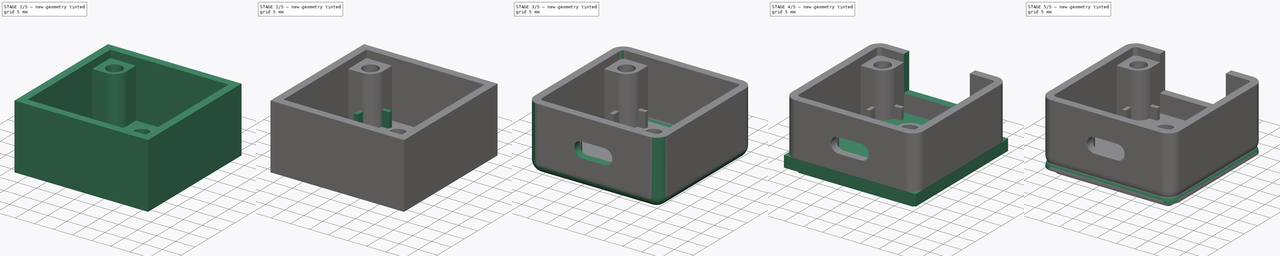
[diagram: build sequence overview — one tinted view per stage of 5, left to right]
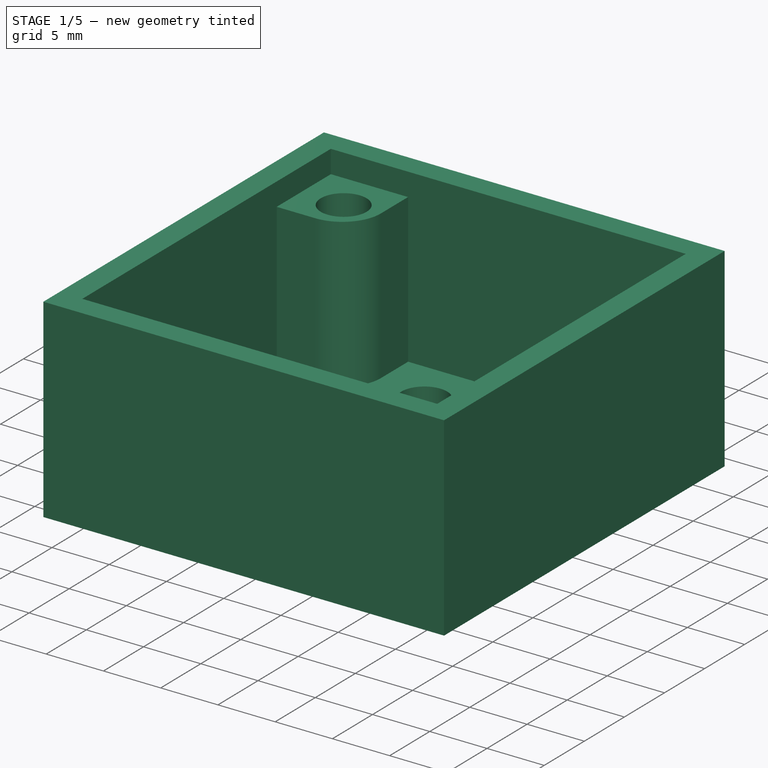
[diagram: stage 1 of 5 — iso view after this stage's code; geometry added in this stage tinted green]
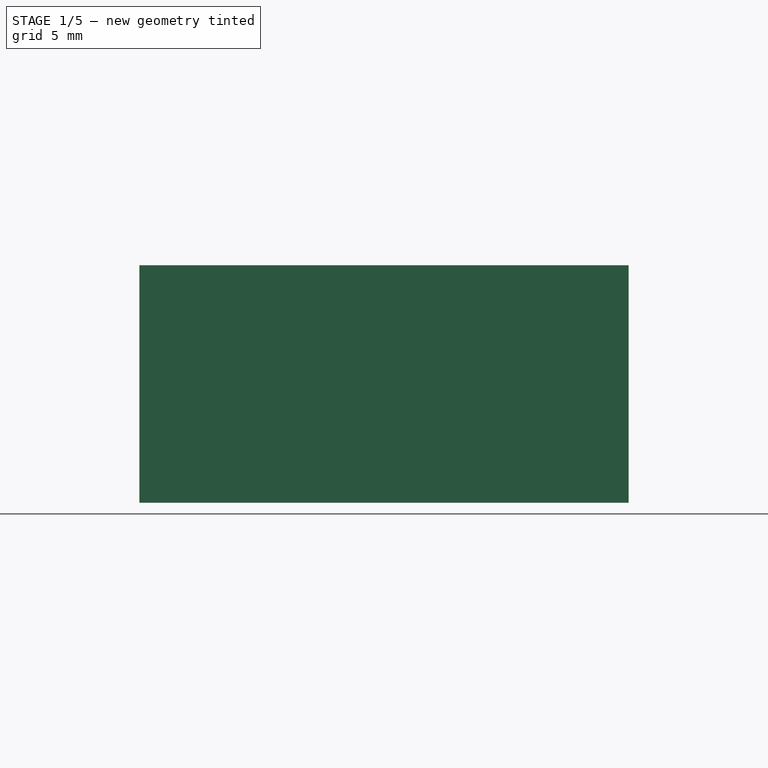
[diagram: stage 1 of 5 — front view after this stage's code; geometry added in this stage tinted green]
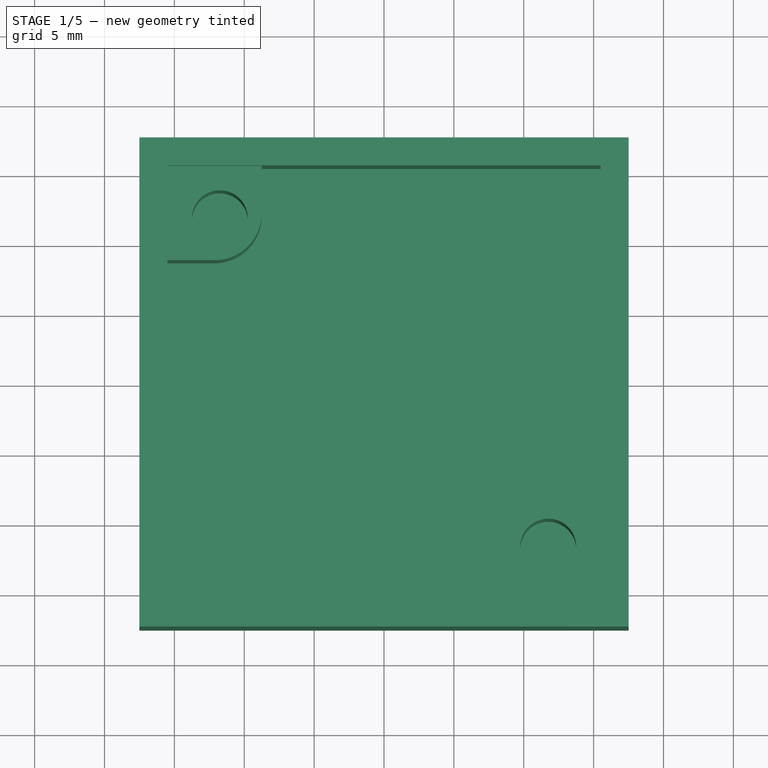
[diagram: stage 1 of 5 — top view after this stage's code; geometry added in this stage tinted green]
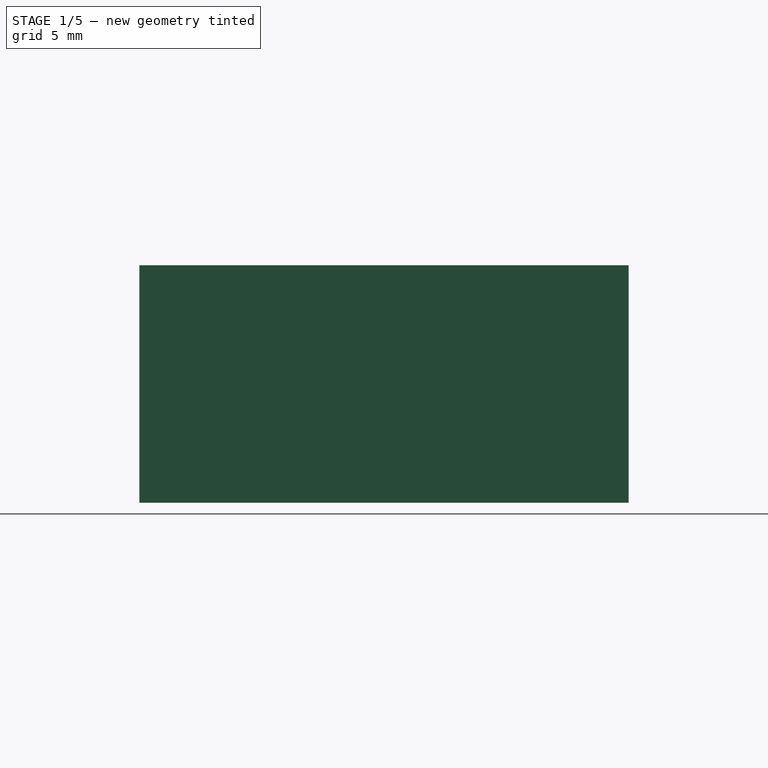
[diagram: stage 1 of 5 — right view after this stage's code; geometry added in this stage tinted green]
FCSTD DOCUMENT  (FreeCAD 0.19R24276 (Git))
Label: USB-C_breakouts
License: All rights reserved
LicenseURL: http://en.wikipedia.org/wiki/All_rights_reserved
objects: Sketcher::SketchObject×20, PartDesign::Pad×13, PartDesign::Pocket×7, PartDesign::Fillet×4, PartDesign::Body×2, Spreadsheet::Sheet×1, PartDesign::Chamfer×1
note: 72 computed .brp shape members not serialized (recipe doc carries the construction recipe); baked Part::Feature solids carry a one-line shape summary decoded from their .brp

FEATURE [Sketcher::SketchObject] Sketch
  FullyConstrained = true
  MapMode = 5
  Support = -> [XY_Plane]
  expr: Constraints[10] = <<dimensions>>.box_body_size
  sketch-geometry (4):
    g0: LineSegment StartX=-17.5 StartY=-17.5 StartZ=0 EndX=17.5 EndY=-17.5 EndZ=0
    g1: LineSegment StartX=17.5 StartY=-17.5 StartZ=0 EndX=17.5 EndY=17.5 EndZ=0
    g2: LineSegment StartX=17.5 StartY=17.5 StartZ=0 EndX=-17.5 EndY=17.5 EndZ=0
    g3: LineSegment StartX=-17.5 StartY=17.5 StartZ=0 EndX=-17.5 EndY=-17.5 EndZ=0
  constraints (11):
    c: Coincident(g0,g1)
    c: Coincident(g1,g2)
    c: Coincident(g2,g3)
    c: Coincident(g3,g0)
    c: Horizontal(g0)
    c: Horizontal(g2)
    c: Vertical(g1)
    c: Vertical(g3)
    c: Equal(g2,g3)
    c: Symmetric(g2,g0,g-1)
    c: Distance(g2) = 35
FEATURE [PartDesign::Pad] Pad
  Direction = (1,1,1)
  Length = 17
  Length2 = 100
  Profile = -> Sketch
  Type = 0
  expr: Length = <<dimensions>>.box_body_height
FEATURE [Sketcher::SketchObject] Sketch026
  FullyConstrained = true
  MapMode = 5
  Placement = pos=(0,0,17) rot=(0,0,1;0rad)
  Support = -> [Pad]
  expr: Constraints[10] = <<dimensions>>.box_body_size - <<dimensions>>.wall_thickness * 2
  sketch-geometry (4):
    g0: LineSegment StartX=-15.5 StartY=15.5 StartZ=0 EndX=15.5 EndY=15.5 EndZ=0
    g1: LineSegment StartX=15.5 StartY=15.5 StartZ=0 EndX=15.5 EndY=-15.5 EndZ=0
    g2: LineSegment StartX=15.5 StartY=-15.5 StartZ=0 EndX=-15.5 EndY=-15.5 EndZ=0
    g3: LineSegment StartX=-15.5 StartY=-15.5 StartZ=0 EndX=-15.5 EndY=15.5 EndZ=0
  constraints (11):
    c: Coincident(g0,g1)
    c: Coincident(g1,g2)
    c: Coincident(g2,g3)
    c: Coincident(g3,g0)
    c: Horizontal(g0)
    c: Horizontal(g2)
    c: Vertical(g1)
    c: Vertical(g3)
    c: Symmetric(g0,g1,g-1)
    c: Equal(g0,g1)
    c: Distance(g0) = 31
FEATURE [PartDesign::Pocket] Pocket
  BaseFeature = -> Pad
  Length = 15
  Length2 = 100
  Profile = -> Sketch026
  Type = 0
  expr: Length = <<dimensions>>.box_body_height - <<dimensions>>.wall_thickness
FEATURE [Sketcher::SketchObject] Sketch027
  ExternalGeometry = -> [Pocket]
  FullyConstrained = true
  MapMode = 5
  Placement = pos=(0,0,2) rot=(0,0,1;0rad)
  Support = -> [Pocket]
  expr: Constraints[9] = <<dimensions>>.post_cover_thickness
  sketch-geometry (7):
    g0: LineSegment StartX=-15.5 StartY=15.5 StartZ=0 EndX=-8.75 EndY=15.5 EndZ=0
    g1: LineSegment StartX=-8.75 StartY=15.5 StartZ=0 EndX=-8.75 EndY=8.75 EndZ=0
    g2: LineSegment StartX=-8.75 StartY=8.75 StartZ=0 EndX=-15.5 EndY=8.75 EndZ=0
    g3: LineSegment StartX=-15.5 StartY=8.75 StartZ=0 EndX=-15.5 EndY=15.5 EndZ=0
    g4: ArcOfCircle CenterX=-12.125 CenterY=12.125 CenterZ=0 NormalX=0 NormalY=0 NormalZ=1 AngleXU=0 Radius=3.375 StartAngle=4.71239 EndAngle=6.28319
    g5: LineSegment StartX=-12.125 StartY=8.75 StartZ=0 EndX=-15.5 EndY=8.75 EndZ=0
    g6: LineSegment StartX=-8.75 StartY=12.125 StartZ=0 EndX=-8.75 EndY=15.5 EndZ=0
  constraints (17):
    c: Coincident(g0,g1)
    c: Coincident(g1,g2)
    c: Coincident(g2,g3)
    c: Coincident(g3,g0)
    c: Horizontal(g0)
    c: Horizontal(g2)
    c: Vertical(g1)
    c: Vertical(g3)
    c: Coincident(g0,g-3)
    c: Distance(g2) = 6.75
    c: Symmetric(g3,g0,g4)
    c: Symmetric(g3,g1,g4)
    c: Symmetric(g0,g1,g4)
    c: Coincident(g5,g4)
    c: Coincident(g5,g3)
    c: Coincident(g6,g4)
    c: Coincident(g6,g0)
FEATURE [PartDesign::Pad] Pad016
  BaseFeature = -> Pocket
  Direction = (1,1,1)
  Length = 13
  Length2 = 100
  Profile = -> Sketch027
  Type = 0
  expr: Length = <<dimensions>>.box_body_height - <<dimensions>>.wall_thickness - 2
FEATURE [Sketcher::SketchObject] Sketch028
  ExternalGeometry = -> [Pad016]
  FullyConstrained = true
  MapMode = 5
  Placement = pos=(0,0,2) rot=(0,0,1;0rad)
  Support = -> [Pad016]
  expr: Constraints[9] = <<dimensions>>.post_cover_thickness
  sketch-geometry (7):
    g0: LineSegment StartX=8.75 StartY=-8.75 StartZ=0 EndX=15.5 EndY=-8.75 EndZ=0
    g1: LineSegment StartX=15.5 StartY=-8.75 StartZ=0 EndX=15.5 EndY=-15.5 EndZ=0
    g2: LineSegment StartX=15.5 StartY=-15.5 StartZ=0 EndX=8.75 EndY=-15.5 EndZ=0
    g3: LineSegment StartX=8.75 StartY=-15.5 StartZ=0 EndX=8.75 EndY=-8.75 EndZ=0
    g4: ArcOfCircle CenterX=12.125 CenterY=-12.125 CenterZ=0 NormalX=0 NormalY=0 NormalZ=1 AngleXU=0 Radius=3.375 StartAngle=1.5708 EndAngle=3.14159
    g5: LineSegment StartX=8.75 StartY=-12.125 StartZ=0 EndX=8.75 EndY=-15.5 EndZ=0
    g6: LineSegment StartX=12.125 StartY=-8.75 StartZ=0 EndX=15.5 EndY=-8.75 EndZ=0
  constraints (17):
    c: Coincident(g0,g1)
    c: Coincident(g1,g2)
    c: Coincident(g2,g3)
    c: Coincident(g3,g0)
    c: Horizontal(g0)
    c: Horizontal(g2)
    c: Vertical(g1)
    c: Vertical(g3)
    c: Coincident(g1,g-3)
    c: Distance(g0) = 6.75
    c: Symmetric(g1,g0,g4)
    c: Symmetric(g0,g2,g4)
    c: Symmetric(g2,g1,g4)
    c: Coincident(g5,g4)
    c: Coincident(g5,g2)
    c: Coincident(g6,g4)
    c: Coincident(g6,g1)
FEATURE [PartDesign::Pad] Pad017
  BaseFeature = -> Pad016
  Direction = (1,1,1)
  Length = 13
  Length2 = 100
  Profile = -> Sketch028
  Type = 0
  expr: Length = <<dimensions>>.box_body_height - <<dimensions>>.wall_thickness - 2
FEATURE [Sketcher::SketchObject] Sketch029
  FullyConstrained = true
  MapMode = 5
  Placement = pos=(0,0,15) rot=(0,0,1;0rad)
  Support = -> [Pad017]
  expr: Constraints[14] = <<dimensions>>.post_cover_hole_size
  sketch-geometry (6):
    g0: LineSegment StartX=-11.75 StartY=11.75 StartZ=0 EndX=11.75 EndY=11.75 EndZ=0
    g1: LineSegment StartX=11.75 StartY=11.75 StartZ=0 EndX=11.75 EndY=-11.75 EndZ=0
    g2: LineSegment StartX=11.75 StartY=-11.75 StartZ=0 EndX=-11.75 EndY=-11.75 EndZ=0
    g3: LineSegment StartX=-11.75 StartY=-11.75 StartZ=0 EndX=-11.75 EndY=11.75 EndZ=0
    g4: Circle CenterX=-11.75 CenterY=11.75 CenterZ=0 NormalX=0 NormalY=0 NormalZ=1 AngleXU=0 Radius=2
    g5: Circle CenterX=11.75 CenterY=-11.75 CenterZ=0 NormalX=0 NormalY=0 NormalZ=1 AngleXU=0 Radius=2
  constraints (15):
    c: Coincident(g0,g1)
    c: Coincident(g1,g2)
    c: Coincident(g2,g3)
    c: Coincident(g3,g0)
    c: Horizontal(g0)
    c: Horizontal(g2)
    c: Vertical(g1)
    c: Vertical(g3)
    c: Coincident(g4,g0)
    c: Coincident(g5,g1)
    c: Equal(g5,g4)
    c: Equal(g0,g1)
    c: Distance(g0) = 23.5
    c: Symmetric(g0,g2,g-1)
    c: Diameter(g4) = 4
FEATURE [PartDesign::Pocket] Pocket009
  BaseFeature = -> Pad017
  Length = 13
  Length2 = 100
  Profile = -> Sketch029
  Type = 0
  expr: Length = <<dimensions>>.box_body_height - <<dimensions>>.wall_thickness - 2
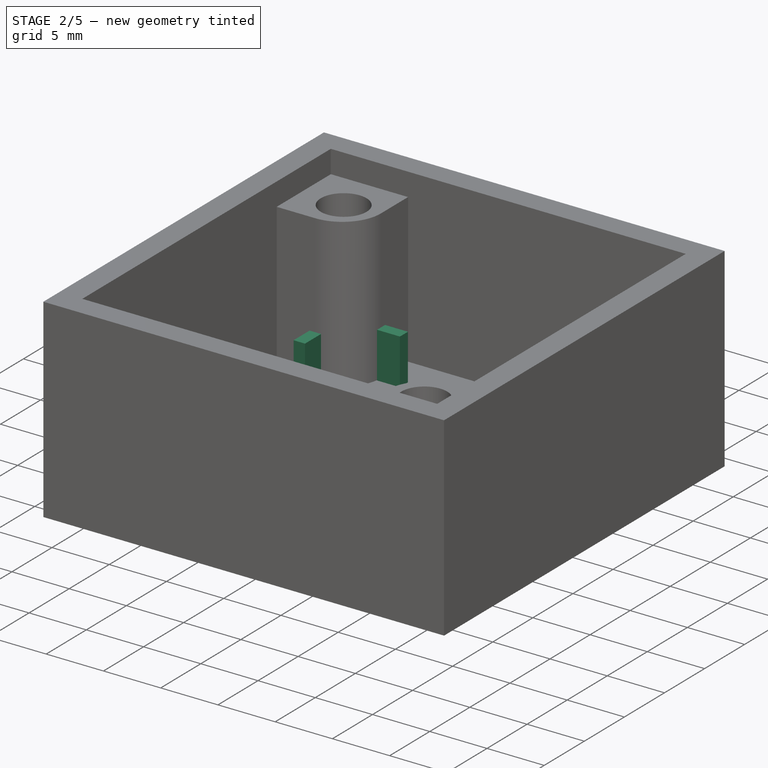
[diagram: stage 2 of 5 — iso view after this stage's code; geometry added in this stage tinted green]
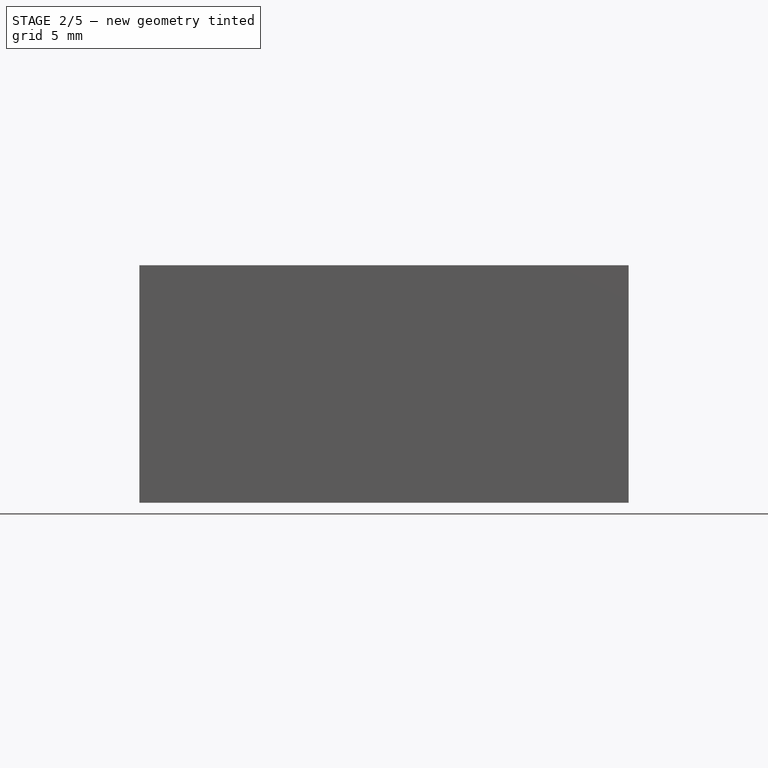
[diagram: stage 2 of 5 — front view after this stage's code; geometry added in this stage tinted green]
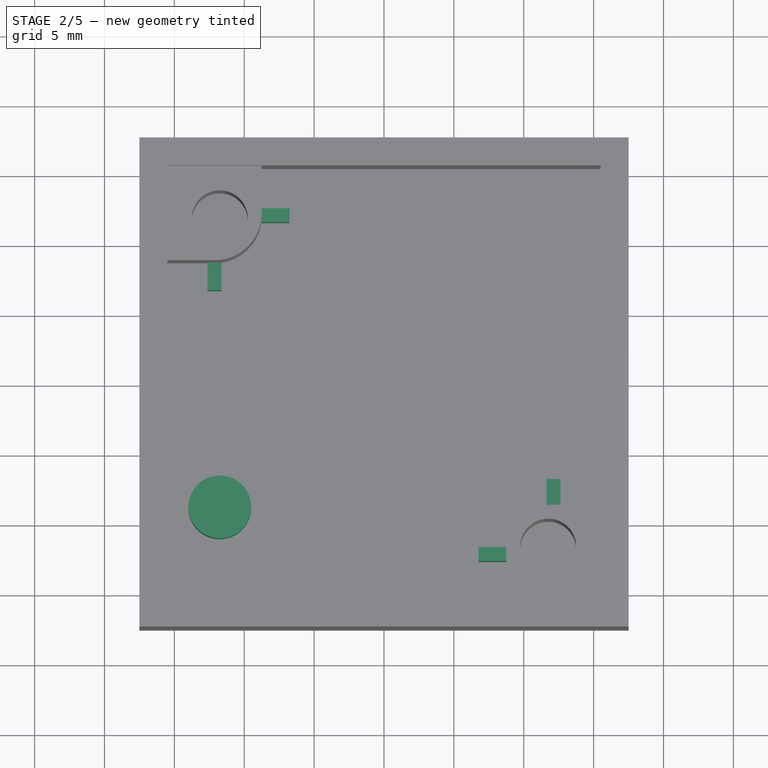
[diagram: stage 2 of 5 — top view after this stage's code; geometry added in this stage tinted green]
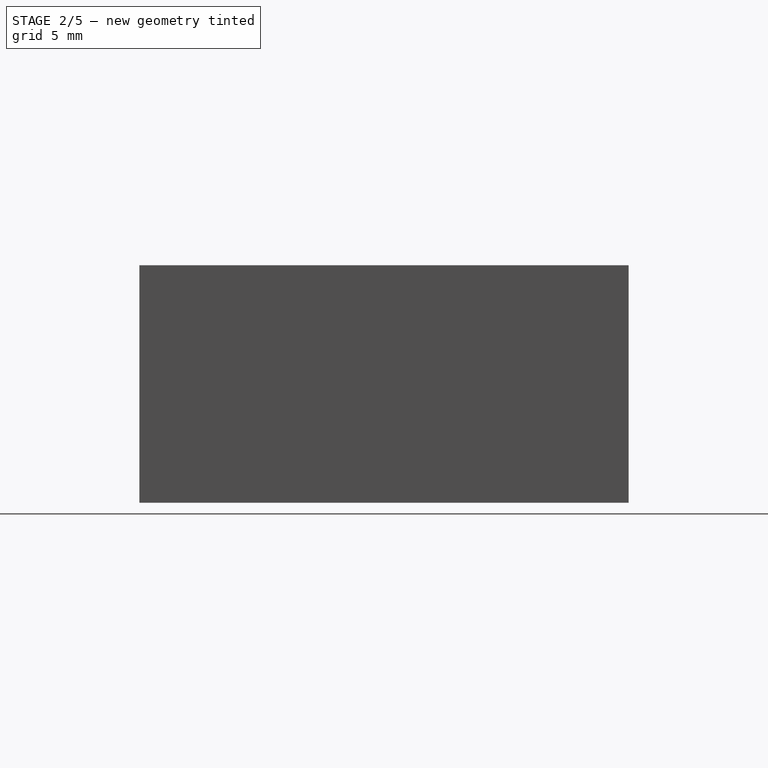
[diagram: stage 2 of 5 — right view after this stage's code; geometry added in this stage tinted green]
FEATURE [Sketcher::SketchObject] Sketch030
  ExternalGeometry = -> [Pocket009]
  FullyConstrained = true
  MapMode = 5
  Placement = pos=(0,0,2) rot=(0,0,1;0rad)
  Support = -> [Pocket009]
  sketch-geometry (4):
    g0: LineSegment StartX=-12.625 StartY=8.75 StartZ=0 EndX=-11.625 EndY=8.75 EndZ=0
    g1: LineSegment StartX=-11.625 StartY=8.75 StartZ=0 EndX=-11.625 EndY=6.75 EndZ=0
    g2: LineSegment StartX=-11.625 StartY=6.75 StartZ=0 EndX=-12.625 EndY=6.75 EndZ=0
    g3: LineSegment StartX=-12.625 StartY=6.75 StartZ=0 EndX=-12.625 EndY=8.75 EndZ=0
  constraints (11):
    c: Coincident(g0,g1)
    c: Coincident(g1,g2)
    c: Coincident(g2,g3)
    c: Coincident(g3,g0)
    c: Horizontal(g0)
    c: Horizontal(g2)
    c: Vertical(g1)
    c: Vertical(g3)
    c: Symmetric(g0,g0,g-3)
    c: Distance(g1) = 2
    c: Distance(g2) = 1
FEATURE [PartDesign::Pad] Pad018
  BaseFeature = -> Pocket009
  Direction = (1,1,1)
  Length = 4
  Length2 = 100
  Profile = -> Sketch030
  Type = 0
  expr: Length = <<dimensions>>.PCB_height
FEATURE [Sketcher::SketchObject] Sketch031
  ExternalGeometry = -> [Pad018]
  FullyConstrained = true
  MapMode = 5
  Placement = pos=(0,0,2) rot=(0,0,1;0rad)
  Support = -> [Pad018]
  sketch-geometry (4):
    g0: LineSegment StartX=-8.75 StartY=12.625 StartZ=0 EndX=-6.75 EndY=12.625 EndZ=0
    g1: LineSegment StartX=-6.75 StartY=12.625 StartZ=0 EndX=-6.75 EndY=11.625 EndZ=0
    g2: LineSegment StartX=-6.75 StartY=11.625 StartZ=0 EndX=-8.75 EndY=11.625 EndZ=0
    g3: LineSegment StartX=-8.75 StartY=11.625 StartZ=0 EndX=-8.75 EndY=12.625 EndZ=0
  constraints (11):
    c: Coincident(g0,g1)
    c: Coincident(g1,g2)
    c: Coincident(g2,g3)
    c: Coincident(g3,g0)
    c: Horizontal(g0)
    c: Horizontal(g2)
    c: Vertical(g1)
    c: Vertical(g3)
    c: Distance(g0) = 2
    c: Distance(g1) = 1
    c: Symmetric(g0,g2,g-3)
FEATURE [PartDesign::Pad] Pad019
  BaseFeature = -> Pad018
  Direction = (1,1,1)
  Length = 4
  Length2 = 100
  Profile = -> Sketch031
  Type = 0
  expr: Length = <<dimensions>>.PCB_height
FEATURE [Sketcher::SketchObject] Sketch032
  ExternalGeometry = -> [Pad019]
  FullyConstrained = true
  MapMode = 5
  Placement = pos=(0,0,2) rot=(0,0,1;0rad)
  Support = -> [Pad019]
  sketch-geometry (4):
    g0: LineSegment StartX=6.75 StartY=-11.625 StartZ=0 EndX=8.75 EndY=-11.625 EndZ=0
    g1: LineSegment StartX=8.75 StartY=-11.625 StartZ=0 EndX=8.75 EndY=-12.625 EndZ=0
    g2: LineSegment StartX=8.75 StartY=-12.625 StartZ=0 EndX=6.75 EndY=-12.625 EndZ=0
    g3: LineSegment StartX=6.75 StartY=-12.625 StartZ=0 EndX=6.75 EndY=-11.625 EndZ=0
  constraints (11):
    c: Coincident(g0,g1)
    c: Coincident(g1,g2)
    c: Coincident(g2,g3)
    c: Coincident(g3,g0)
    c: Horizontal(g0)
    c: Horizontal(g2)
    c: Vertical(g1)
    c: Vertical(g3)
    c: Distance(g0) = 2
    c: Distance(g3) = 1
    c: Symmetric(g0,g1,g-3)
FEATURE [PartDesign::Pad] Pad020
  BaseFeature = -> Pad019
  Direction = (1,1,1)
  Length = 4
  Length2 = 100
  Profile = -> Sketch032
  Type = 0
  expr: Length = <<dimensions>>.PCB_height
FEATURE [Sketcher::SketchObject] Sketch033
  ExternalGeometry = -> [Pad020]
  FullyConstrained = true
  MapMode = 5
  Placement = pos=(0,0,2) rot=(0,0,1;0rad)
  Support = -> [Pad020]
  sketch-geometry (4):
    g0: LineSegment StartX=11.625 StartY=-6.75 StartZ=0 EndX=12.625 EndY=-6.75 EndZ=0
    g1: LineSegment StartX=12.625 StartY=-6.75 StartZ=0 EndX=12.625 EndY=-8.75 EndZ=0
    g2: LineSegment StartX=12.625 StartY=-8.75 StartZ=0 EndX=11.625 EndY=-8.75 EndZ=0
    g3: LineSegment StartX=11.625 StartY=-8.75 StartZ=0 EndX=11.625 EndY=-6.75 EndZ=0
  constraints (11):
    c: Coincident(g0,g1)
    c: Coincident(g1,g2)
    c: Coincident(g2,g3)
    c: Coincident(g3,g0)
    c: Horizontal(g0)
    c: Horizontal(g2)
    c: Vertical(g1)
    c: Vertical(g3)
    c: Distance(g3) = 2
    c: Distance(g0) = 1
    c: Symmetric(g1,g2,g-3)
FEATURE [PartDesign::Pad] Pad021
  BaseFeature = -> Pad020
  Direction = (1,1,1)
  Length = 4
  Length2 = 100
  Profile = -> Sketch033
  Type = 0
  expr: Length = <<dimensions>>.PCB_height
FEATURE [Sketcher::SketchObject] Sketch034
  FullyConstrained = true
  MapMode = 5
  Placement = pos=(0,0,2) rot=(0,0,1;0rad)
  Support = -> [Pad021]
  expr: Constraints[10] = <<dimensions>>.PCB_post_width
  sketch-geometry (5):
    g0: LineSegment StartX=-11.75 StartY=-8.75 StartZ=0 EndX=0 EndY=-8.75 EndZ=0
    g1: LineSegment StartX=0 StartY=-8.75 StartZ=0 EndX=0 EndY=0 EndZ=0
    g2: LineSegment StartX=0 StartY=0 StartZ=0 EndX=-11.75 EndY=0 EndZ=0
    g3: LineSegment StartX=-11.75 StartY=0 StartZ=0 EndX=-11.75 EndY=-8.75 EndZ=0
    g4: Circle CenterX=-11.75 CenterY=-8.75 CenterZ=0 NormalX=0 NormalY=0 NormalZ=1 AngleXU=0 Radius=2.25
  constraints (13):
    c: Coincident(g0,g1)
    c: Coincident(g1,g2)
    c: Coincident(g2,g3)
    c: Coincident(g3,g0)
    c: Horizontal(g0)
    c: Horizontal(g2)
    c: Vertical(g1)
    c: Vertical(g3)
    c: Coincident(g1,g-1)
    c: Coincident(g4,g0)
    c: Diameter(g4) = 4.5
    c: Distance(g0) = 11.75
    c: Distance(g3) = 8.75
FEATURE [PartDesign::Pad] Pad022
  BaseFeature = -> Pad021
  Direction = (1,1,1)
  Length = 4
  Length2 = 100
  Profile = -> Sketch034
  Type = 0
  expr: Length = <<dimensions>>.PCB_height
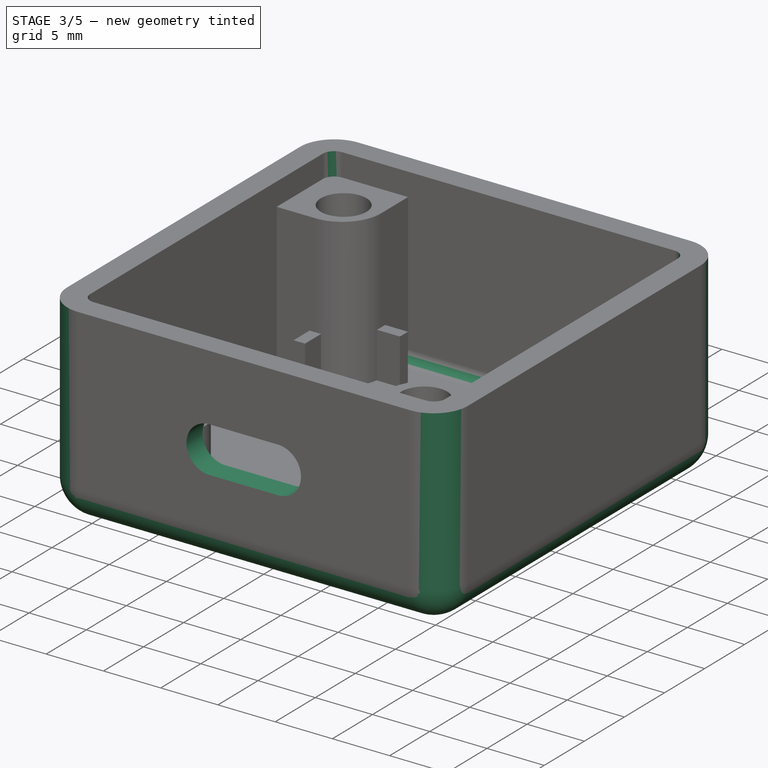
[diagram: stage 3 of 5 — iso view after this stage's code; geometry added in this stage tinted green]
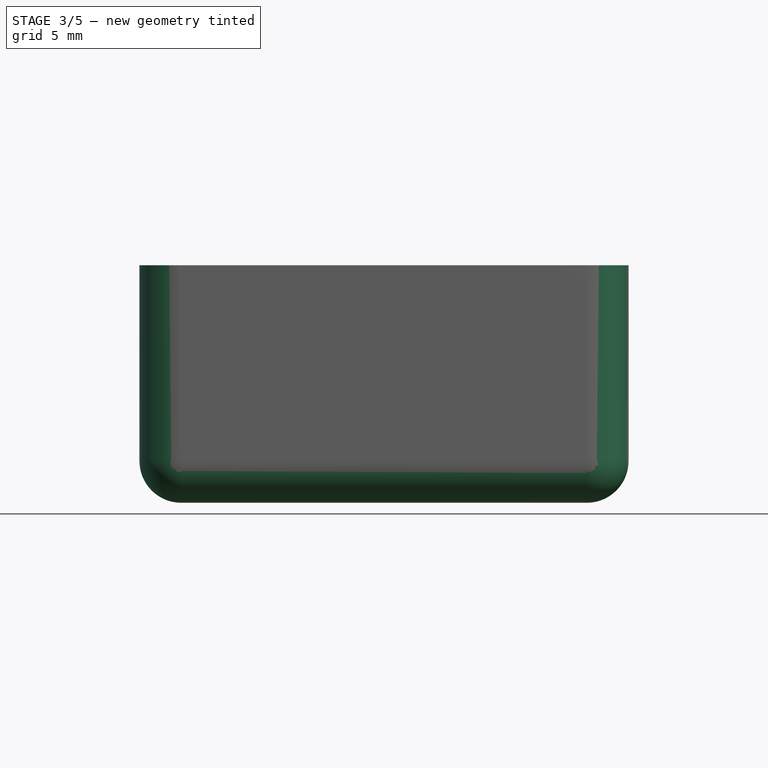
[diagram: stage 3 of 5 — front view after this stage's code; geometry added in this stage tinted green]
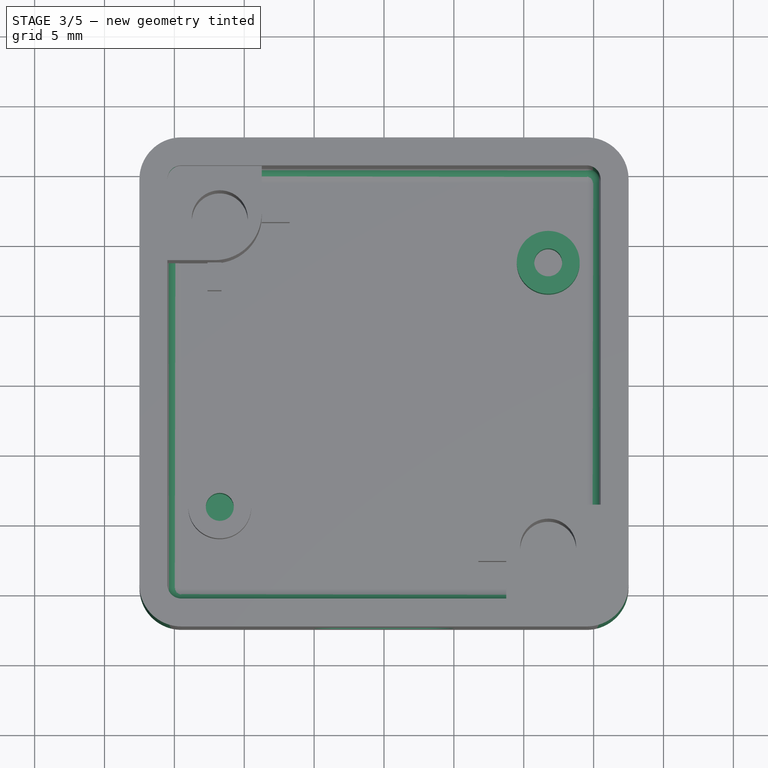
[diagram: stage 3 of 5 — top view after this stage's code; geometry added in this stage tinted green]
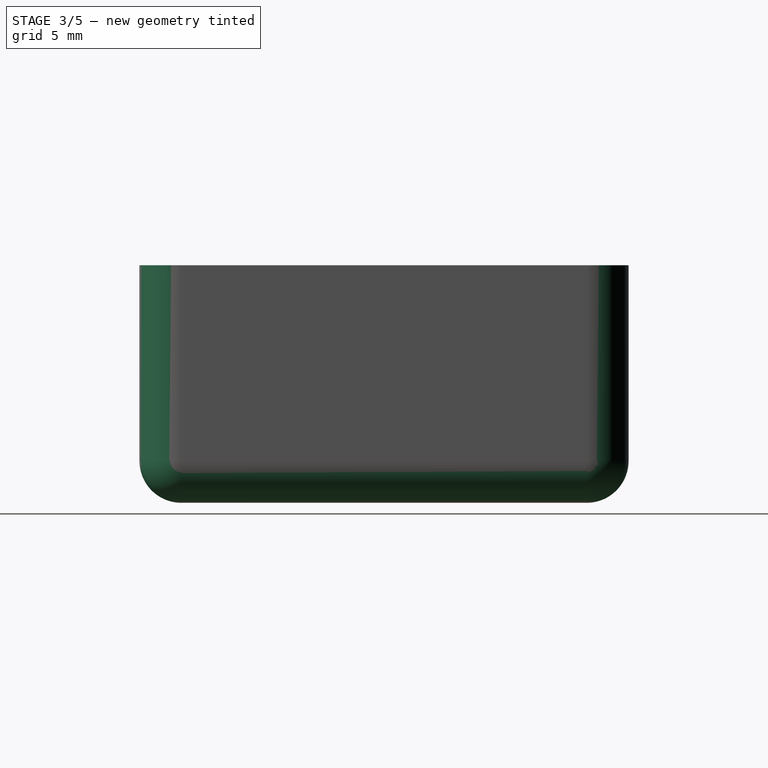
[diagram: stage 3 of 5 — right view after this stage's code; geometry added in this stage tinted green]
FEATURE [Sketcher::SketchObject] Sketch035
  FullyConstrained = true
  MapMode = 5
  Placement = pos=(0,0,2) rot=(0,0,1;0rad)
  Support = -> [Pad022]
  expr: Constraints[10] = <<dimensions>>.PCB_post_width
  sketch-geometry (5):
    g0: LineSegment StartX=0 StartY=0 StartZ=0 EndX=11.75 EndY=0 EndZ=0
    g1: LineSegment StartX=11.75 StartY=0 StartZ=0 EndX=11.75 EndY=8.75 EndZ=0
    g2: LineSegment StartX=11.75 StartY=8.75 StartZ=0 EndX=0 EndY=8.75 EndZ=0
    g3: LineSegment StartX=0 StartY=8.75 StartZ=0 EndX=0 EndY=0 EndZ=0
    g4: Circle CenterX=11.75 CenterY=8.75 CenterZ=0 NormalX=0 NormalY=0 NormalZ=1 AngleXU=0 Radius=2.25
  constraints (13):
    c: Coincident(g0,g1)
    c: Coincident(g1,g2)
    c: Coincident(g2,g3)
    c: Coincident(g3,g0)
    c: Horizontal(g0)
    c: Horizontal(g2)
    c: Vertical(g1)
    c: Vertical(g3)
    c: Coincident(g0,g-1)
    c: Coincident(g4,g1)
    c: Diameter(g4) = 4.5
    c: Distance(g0) = 11.75
    c: Distance(g1) = 8.75
FEATURE [PartDesign::Pad] Pad023
  BaseFeature = -> Pad022
  Direction = (1,1,1)
  Length = 4
  Length2 = 100
  Profile = -> Sketch035
  Type = 0
  expr: Length = <<dimensions>>.PCB_height
FEATURE [Sketcher::SketchObject] Sketch036
  ExternalGeometry = -> [Pad023]
  FullyConstrained = true
  MapMode = 5
  Placement = pos=(0,0,6) rot=(0,0,1;0rad)
  Support = -> [Pad023]
  expr: Constraints[3] = <<dimensions>>.PCB_post_hole
  sketch-geometry (2):
    g0: Circle CenterX=-11.75 CenterY=-8.75 CenterZ=0 NormalX=0 NormalY=0 NormalZ=1 AngleXU=0 Radius=1
    g1: Circle CenterX=11.75 CenterY=8.75 CenterZ=0 NormalX=0 NormalY=0 NormalZ=1 AngleXU=0 Radius=1
  constraints (4):
    c: Coincident(g0,g-4)
    c: Coincident(g1,g-3)
    c: Equal(g1,g0)
    c: Diameter(g1) = 2
FEATURE [PartDesign::Pocket] Pocket010
  BaseFeature = -> Pad023
  Length = 4
  Length2 = 100
  Profile = -> Sketch036
  Type = 0
  expr: Length = <<dimensions>>.PCB_height
FEATURE [PartDesign::Fillet] Fillet
  Base = -> Pocket010 [Edge17,Edge30,Edge20,Edge29,Edge28,Edge25,Edge22,Edge21]
  BaseFeature = -> Pocket010
  Radius = 1
  SupportTransform = false
  expr: Radius = <<dimensions>>.fillet_inner
FEATURE [PartDesign::Fillet] Fillet001
  Base = -> Fillet [Edge37,Edge39,Edge38,Edge43,Edge42,Edge41,Edge40,Edge44]
  BaseFeature = -> Fillet
  Radius = 3
  SupportTransform = false
  expr: Radius = <<dimensions>>.fillet_outer
FEATURE [PartDesign::Body] Body001  label="box_cover"
  Group = -> [Sketch020,Pad012,Sketch021,Pad013,Sketch022,Pocket007,Sketch023,Pad014,Sketch024,Pad015,Sketch025,Pocket008,Fillet002,Fillet003,Chamfer]
  Origin = -> Origin001
  Placement = pos=(0,0,17) rot=(0,0,1;0rad)
  Tip = -> Chamfer
  expr: .Placement.Base.z = <<dimensions>>.box_body_height
FEATURE [Sketcher::SketchObject] Sketch038
  ExternalGeometry = -> [Pocket]
  FullyConstrained = true
  MapMode = 5
  Placement = pos=(0,-17.5,0) rot=(1,0,0;1.5708rad)
  Support = -> [Pocket]
  expr: Constraints[12] = <<dimensions>>.wall_thickness + <<dimensions>>.PCB_height + <<dimensions>>.PCB_thickness + 1.6
  expr: Constraints[11] = <<dimensions>>.USBC_Y_pos
  sketch-geometry (13):
    g0: LineSegment StartX=-5 StartY=11.2 StartZ=0 EndX=5 EndY=11.2 EndZ=0
    g1: LineSegment StartX=5 StartY=11.2 StartZ=0 EndX=5 EndY=7.2 EndZ=0
    g2: LineSegment StartX=5 StartY=7.2 StartZ=0 EndX=-5 EndY=7.2 EndZ=0
    g3: LineSegment StartX=-5 StartY=7.2 StartZ=0 EndX=-5 EndY=11.2 EndZ=0
    g4: GeomPoint X=1.5e-15 Y=9.2 Z=0
    g5: GeomPoint X=-5 Y=9.2 Z=0
    g6: ArcOfCircle CenterX=-3 CenterY=9.2 CenterZ=0 NormalX=0 NormalY=0 NormalZ=1 AngleXU=0 Radius=2 StartAngle=1.5708 EndAngle=3.14159
    g7: ArcOfCircle CenterX=-3 CenterY=9.2 CenterZ=0 NormalX=0 NormalY=0 NormalZ=1 AngleXU=0 Radius=2 StartAngle=3.14159 EndAngle=4.71239
    g8: GeomPoint X=5 Y=9.2 Z=0
    g9: ArcOfCircle CenterX=3 CenterY=9.2 CenterZ=0 NormalX=0 NormalY=0 NormalZ=1 AngleXU=0 Radius=2 StartAngle=0 EndAngle=1.5708
    g10: ArcOfCircle CenterX=3 CenterY=9.2 CenterZ=0 NormalX=0 NormalY=0 NormalZ=1 AngleXU=0 Radius=2 StartAngle=4.71239 EndAngle=6.28319
    g11: LineSegment StartX=-3 StartY=11.2 StartZ=0 EndX=3 EndY=11.2 EndZ=0
    g12: LineSegment StartX=-3 StartY=7.2 StartZ=0 EndX=3 EndY=7.2 EndZ=0
  constraints (33):
    c: Coincident(g0,g1)
    c: Coincident(g1,g2)
    c: Coincident(g2,g3)
    c: Coincident(g3,g0)
    c: Horizontal(g0)
    c: Horizontal(g2)
    c: Vertical(g1)
    c: Vertical(g3)
    c: Symmetric(g0,g2,g4)
    c: Distance(g0) = 10
    c: Distance(g1) = 4
    c: Distance(g4,g-5) = 17.5
    c: Distance(g4,g-4) = 9.2
    c: Symmetric(g0,g2,g5)
    c: PointOnObject(g6,g0)
    c: Coincident(g6,g5)
    c: Horizontal(g6,g6)
    c: Coincident(g7,g6)
    c: Coincident(g7,g6)
    c: PointOnObject(g7,g2)
    c: Vertical(g6,g6)
    c: Symmetric(g0,g1,g8)
    c: PointOnObject(g9,g0)
    c: Horizontal(g9,g8)
    c: Vertical(g9,g9)
    c: Coincident(g9,g8)
    c: Coincident(g10,g9)
    c: Coincident(g10,g9)
    c: PointOnObject(g10,g2)
    c: Coincident(g11,g6)
    c: Coincident(g11,g9)
    c: Coincident(g12,g7)
    c: Coincident(g12,g10)
FEATURE [PartDesign::Pocket] Pocket011
  BaseFeature = -> Fillet001
  Length = 2
  Length2 = 100
  Profile = -> Sketch038
  Type = 0
  expr: Length = <<dimensions>>.wall_thickness
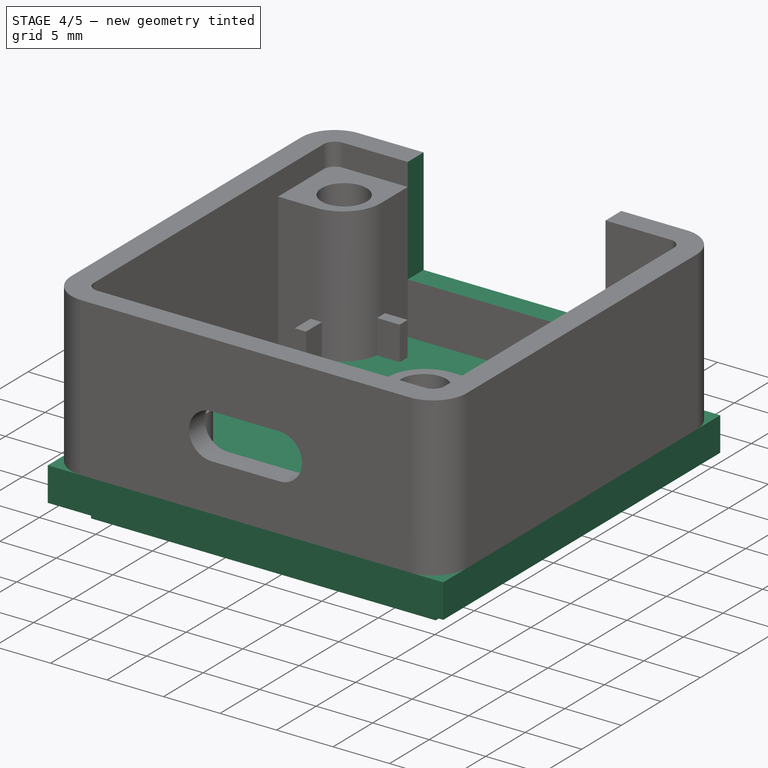
[diagram: stage 4 of 5 — iso view after this stage's code; geometry added in this stage tinted green]
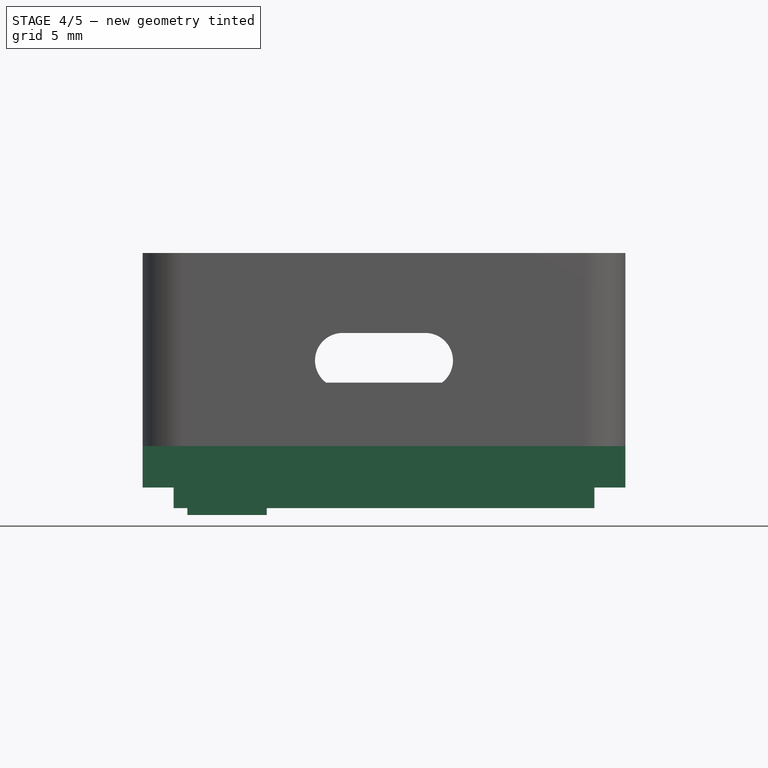
[diagram: stage 4 of 5 — front view after this stage's code; geometry added in this stage tinted green]
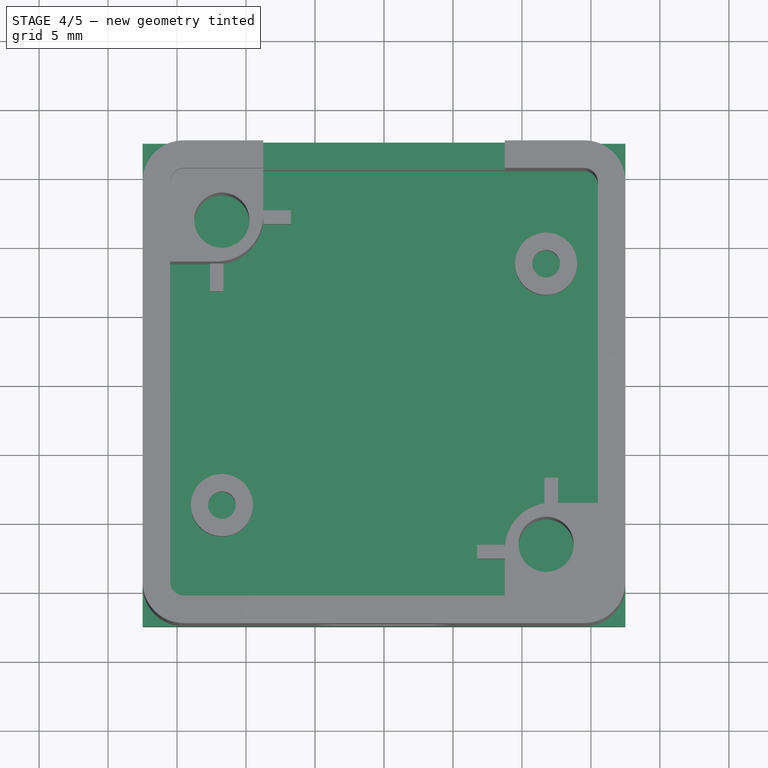
[diagram: stage 4 of 5 — top view after this stage's code; geometry added in this stage tinted green]
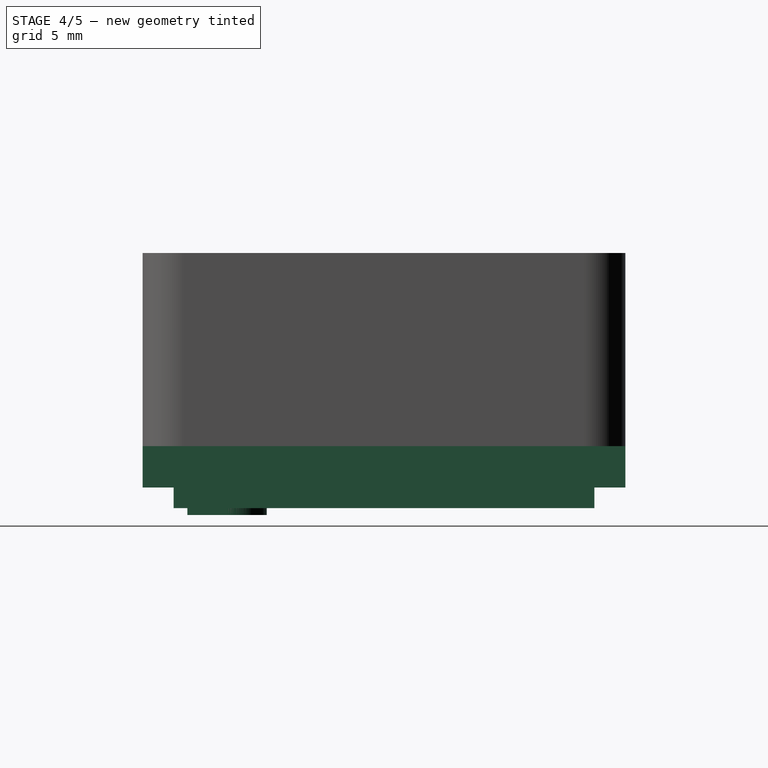
[diagram: stage 4 of 5 — right view after this stage's code; geometry added in this stage tinted green]
FEATURE [Spreadsheet::Sheet] Spreadsheet  label="dimensions"
  cells = A1=box body height; B1=box body size; D1=cover post thickness; E1=cover post hole size; F1=PCB height; G1=inner fillet; H1=outer fillet; A2(box_body_height)=17; B2(box_body_size)=35; D2(post_cover_thickness)=6.75; E2(post_cover_hole_size)=4; F2(PCB_height)=4; G2(fillet_inner)=1; H2(fillet_outer)=3; A4=box cover height; A5(box_cover_height)=3; A7=wall thickness; A8(wall_thickness)=2; A9=PCB thickness; B9=USB-C Y pos; A10(PCB_thickness)=1.6; B10(USBC_Y_pos)==box_body_size / 2; A11=PCB post width; B11=PCB post hole; A12(PCB_post_width)=4.5; B12(PCB_post_hole)=2
FEATURE [Sketcher::SketchObject] Sketch020  label="cover_size_outline"
  FullyConstrained = true
  MapMode = 5
  Support = -> [XY_Plane001]
  expr: Constraints[10] = <<dimensions>>.box_body_size
  sketch-geometry (4):
    g0: LineSegment StartX=-17.5 StartY=17.5 StartZ=0 EndX=17.5 EndY=17.5 EndZ=0
    g1: LineSegment StartX=17.5 StartY=17.5 StartZ=0 EndX=17.5 EndY=-17.5 EndZ=0
    g2: LineSegment StartX=17.5 StartY=-17.5 StartZ=0 EndX=-17.5 EndY=-17.5 EndZ=0
    g3: LineSegment StartX=-17.5 StartY=-17.5 StartZ=0 EndX=-17.5 EndY=17.5 EndZ=0
  constraints (11):
    c: Coincident(g0,g1)
    c: Coincident(g1,g2)
    c: Coincident(g2,g3)
    c: Coincident(g3,g0)
    c: Horizontal(g0)
    c: Horizontal(g2)
    c: Vertical(g1)
    c: Vertical(g3)
    c: Symmetric(g2,g0,g-1)
    c: Equal(g0,g1)
    c: Distance(g0) = 35
FEATURE [PartDesign::Pad] Pad012  label="cover_body"
  Direction = (1,1,1)
  Length = 3
  Length2 = 100
  Profile = -> Sketch020
  Type = 0
  expr: Length = <<dimensions>>.box_cover_height
FEATURE [Sketcher::SketchObject] Sketch021  label="cover_inner_edge_outline"
  FullyConstrained = true
  MapMode = 5
  Placement = pos=(0,0,0) rot=(1,0,0;3.14159rad)
  Support = -> [Pad012]
  expr: Constraints[10] = <<dimensions>>.box_body_size - <<dimensions>>.wall_thickness * 2 - 0.5
  sketch-geometry (4):
    g0: LineSegment StartX=-15.25 StartY=15.25 StartZ=0 EndX=15.25 EndY=15.25 EndZ=0
    g1: LineSegment StartX=15.25 StartY=15.25 StartZ=0 EndX=15.25 EndY=-15.25 EndZ=0
    g2: LineSegment StartX=15.25 StartY=-15.25 StartZ=0 EndX=-15.25 EndY=-15.25 EndZ=0
    g3: LineSegment StartX=-15.25 StartY=-15.25 StartZ=0 EndX=-15.25 EndY=15.25 EndZ=0
  constraints (11):
    c: Coincident(g0,g1)
    c: Coincident(g1,g2)
    c: Coincident(g2,g3)
    c: Coincident(g3,g0)
    c: Horizontal(g0)
    c: Horizontal(g2)
    c: Vertical(g1)
    c: Vertical(g3)
    c: Symmetric(g0,g2,g-1)
    c: Equal(g0,g3)
    c: Distance(g0) = 30.5
FEATURE [PartDesign::Pad] Pad013  label="cover_inner_edge"
  BaseFeature = -> Pad012
  Direction = (1,1,1)
  Length = 1.5
  Length2 = 100
  Profile = -> Sketch021
  Type = 0
FEATURE [Sketcher::SketchObject] Sketch022  label="cover_cavity_sketch"
  FullyConstrained = true
  MapMode = 5
  Placement = pos=(0,0,-1.5) rot=(1,0,0;3.14159rad)
  Support = -> [Pad013]
  expr: Constraints[10] = <<dimensions>>.box_body_size - <<dimensions>>.wall_thickness * 2 - 2.5
  sketch-geometry (4):
    g0: LineSegment StartX=-14.25 StartY=14.25 StartZ=0 EndX=14.25 EndY=14.25 EndZ=0
    g1: LineSegment StartX=14.25 StartY=14.25 StartZ=0 EndX=14.25 EndY=-14.25 EndZ=0
    g2: LineSegment StartX=14.25 StartY=-14.25 StartZ=0 EndX=-14.25 EndY=-14.25 EndZ=0
    g3: LineSegment StartX=-14.25 StartY=-14.25 StartZ=0 EndX=-14.25 EndY=14.25 EndZ=0
  constraints (11):
    c: Coincident(g0,g1)
    c: Coincident(g1,g2)
    c: Coincident(g2,g3)
    c: Coincident(g3,g0)
    c: Horizontal(g0)
    c: Horizontal(g2)
    c: Vertical(g1)
    c: Vertical(g3)
    c: Symmetric(g0,g2,g-1)
    c: Equal(g0,g3)
    c: Distance(g0) = 28.5
FEATURE [PartDesign::Pocket] Pocket007  label="cover_cavity"
  BaseFeature = -> Pad013
  Length = 2.5
  Length2 = 100
  Profile = -> Sketch022
  Type = 0
  expr: Length = <<dimensions>>.box_cover_height + 1.5 - <<dimensions>>.wall_thickness
FEATURE [Sketcher::SketchObject] Sketch023  label="top_base_post_outline"
  ExternalGeometry = -> [Pocket007]
  FullyConstrained = true
  MapMode = 5
  Placement = pos=(0,0,1) rot=(1,0,0;3.14159rad)
  Support = -> [Pocket007]
  expr: Constraints[16] = <<dimensions>>.post_cover_thickness - 1
  sketch-geometry (7):
    g0: LineSegment StartX=-14.25 StartY=14.25 StartZ=0 EndX=-8.5 EndY=14.25 EndZ=0
    g1: LineSegment StartX=-8.5 StartY=14.25 StartZ=0 EndX=-8.5 EndY=8.5 EndZ=0
    g2: LineSegment StartX=-8.5 StartY=8.5 StartZ=0 EndX=-14.25 EndY=8.5 EndZ=0
    g3: LineSegment StartX=-14.25 StartY=8.5 StartZ=0 EndX=-14.25 EndY=14.25 EndZ=0
    g4: ArcOfCircle CenterX=-11.375 CenterY=11.375 CenterZ=0 NormalX=0 NormalY=0 NormalZ=1 AngleXU=0 Radius=2.875 StartAngle=4.71239 EndAngle=6.28319
    g5: LineSegment StartX=-11.375 StartY=8.5 StartZ=0 EndX=-14.25 EndY=8.5 EndZ=0
    g6: LineSegment StartX=-8.5 StartY=11.375 StartZ=0 EndX=-8.5 EndY=14.25 EndZ=0
  constraints (17):
    c: Coincident(g0,g1)
    c: Coincident(g1,g2)
    c: Coincident(g2,g3)
    c: Coincident(g3,g0)
    c: Horizontal(g0)
    c: Horizontal(g2)
    c: Vertical(g1)
    c: Vertical(g3)
    c: Coincident(g0,g-3)
    c: Coincident(g5,g4)
    c: Coincident(g5,g3)
    c: Coincident(g6,g4)
    c: Coincident(g6,g0)
    c: Symmetric(g0,g3,g4)
    c: Symmetric(g3,g1,g4)
    c: Symmetric(g1,g0,g4)
    c: Distance(g2) = 5.75
FEATURE [PartDesign::Pad] Pad014  label="top_base_post"
  BaseFeature = -> Pocket007
  Direction = (1,1,1)
  Length = 3
  Length2 = 100
  Profile = -> Sketch023
  Type = 0
  expr: Length = <<dimensions>>.box_cover_height - <<dimensions>>.wall_thickness + 2
FEATURE [Sketcher::SketchObject] Sketch039
  ExternalGeometry = -> [Pad017]
  FullyConstrained = true
  MapMode = 5
  Placement = pos=(0,17.5,0) rot=(0,0.707107,0.707107;3.14159rad)
  Support = -> [Pad017]
  expr: Constraints[8] = <<dimensions>>.wall_thickness + <<dimensions>>.PCB_height + <<dimensions>>.PCB_thickness
  sketch-geometry (4):
    g0: LineSegment StartX=-8.75 StartY=17 StartZ=0 EndX=8.75 EndY=17 EndZ=0
    g1: LineSegment StartX=8.75 StartY=17 StartZ=0 EndX=8.75 EndY=7.6 EndZ=0
    g2: LineSegment StartX=8.75 StartY=7.6 StartZ=0 EndX=-8.75 EndY=7.6 EndZ=0
    g3: LineSegment StartX=-8.75 StartY=7.6 StartZ=0 EndX=-8.75 EndY=17 EndZ=0
  constraints (12):
    c: Coincident(g0,g1)
    c: Coincident(g1,g2)
    c: Coincident(g2,g3)
    c: Coincident(g3,g0)
    c: Horizontal(g0)
    c: Horizontal(g2)
    c: Vertical(g1)
    c: Vertical(g3)
    c: DistanceY(g-1,g2) = 7.6
    c: PointOnObject(g0,g-3)
    c: Vertical(g0,g-4)
    c: PointOnObject(g-5,g3)
FEATURE [PartDesign::Pocket] Pocket012
  BaseFeature = -> Pocket011
  Length = 2
  Length2 = 100
  Profile = -> Sketch039
  Type = 0
  expr: Length = <<dimensions>>.wall_thickness
FEATURE [PartDesign::Body] Body  label="box_body"
  Group = -> [Sketch,Pad,Sketch026,Pocket,Sketch027,Pad016,Sketch028,Pad017,Sketch029,Pocket009,Sketch030,Pad018,Sketch031,Pad019,Sketch032,Pad020,Sketch033,Pad021,Sketch034,Pad022,Sketch035,Pad023,Sketch036,Pocket010,Fillet,Fillet001,Sketch038,Pocket011,Sketch039,Pocket012]
  Origin = -> Origin
  Tip = -> Pocket012
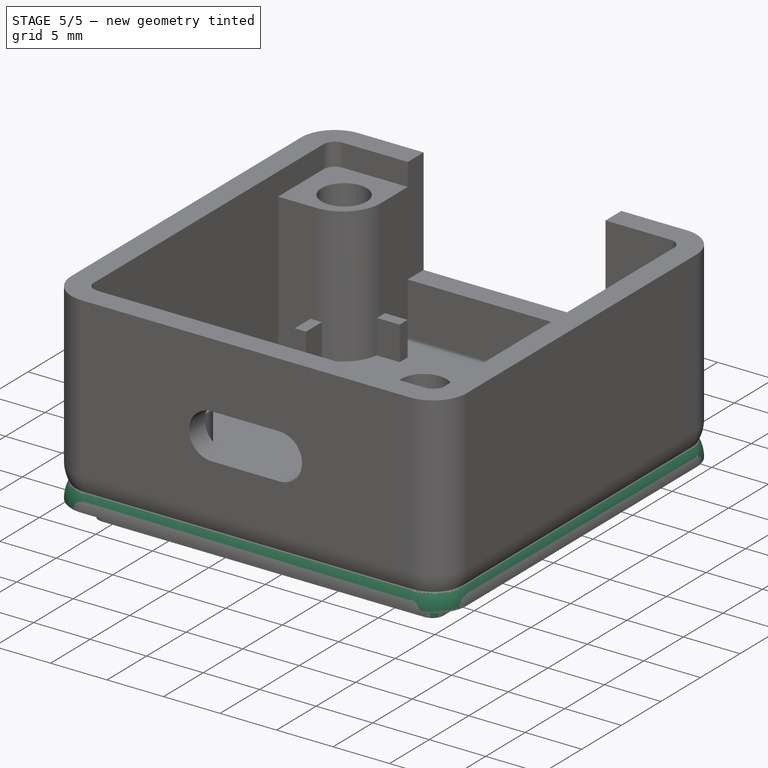
[diagram: stage 5 of 5 — iso view after this stage's code; geometry added in this stage tinted green]
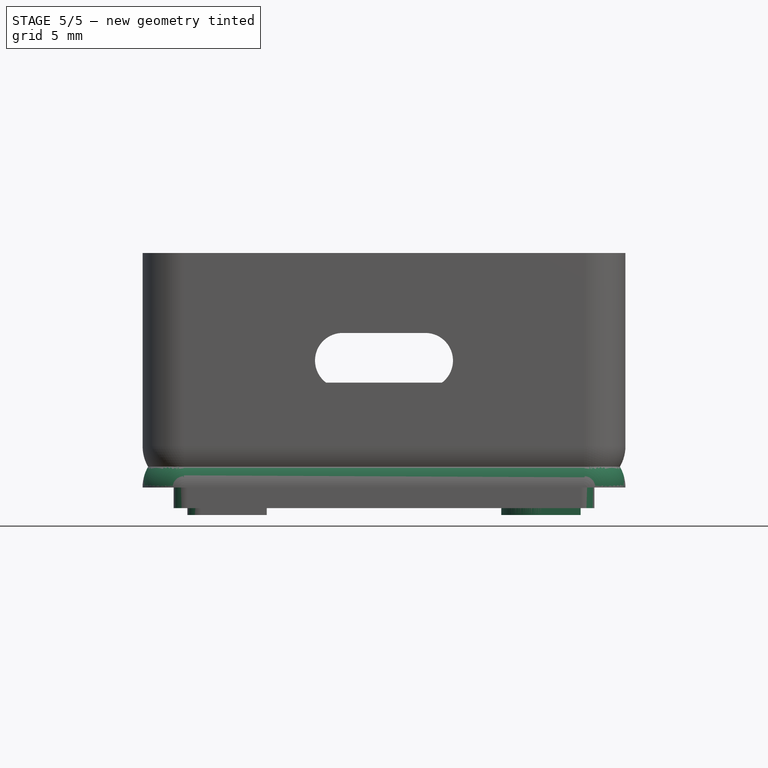
[diagram: stage 5 of 5 — front view after this stage's code; geometry added in this stage tinted green]
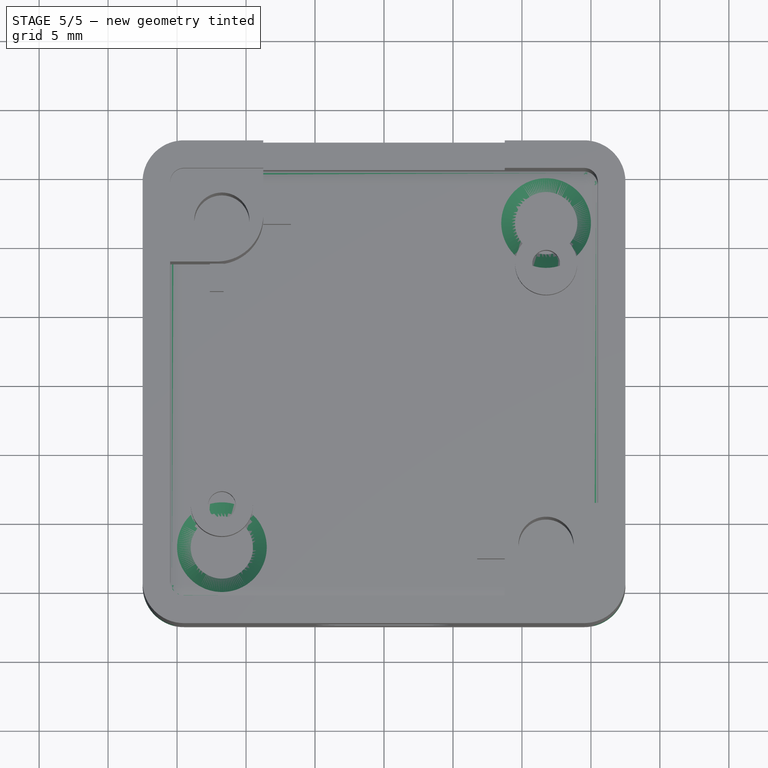
[diagram: stage 5 of 5 — top view after this stage's code; geometry added in this stage tinted green]
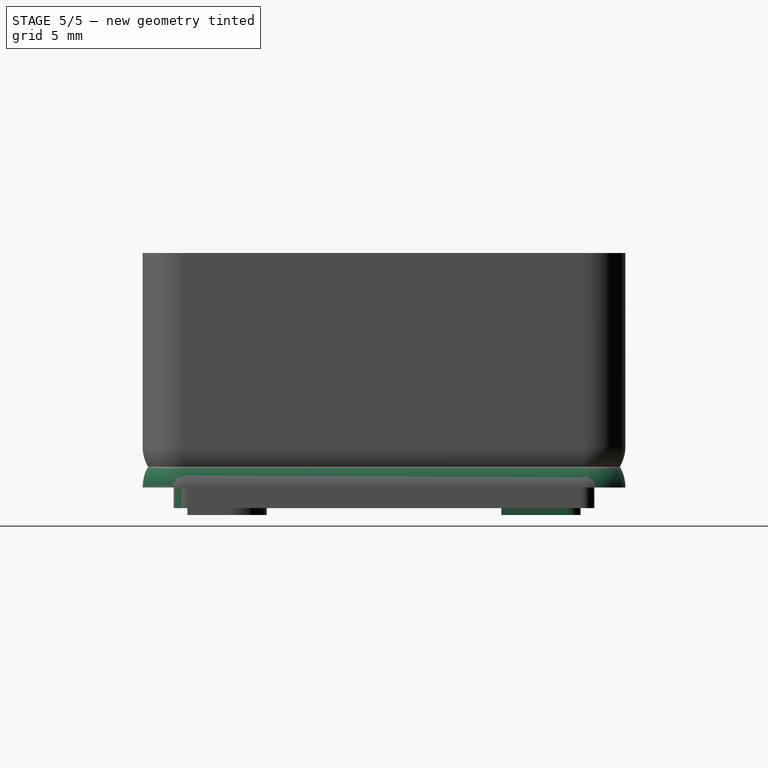
[diagram: stage 5 of 5 — right view after this stage's code; geometry added in this stage tinted green]
FEATURE [Sketcher::SketchObject] Sketch024  label="bot_base_post_outline"
  ExternalGeometry = -> [Pad014]
  FullyConstrained = true
  MapMode = 5
  Placement = pos=(0,0,1) rot=(1,0,0;3.14159rad)
  Support = -> [Pad014]
  expr: Constraints[16] = <<dimensions>>.post_cover_thickness - 1
  sketch-geometry (7):
    g0: LineSegment StartX=8.5 StartY=-8.5 StartZ=0 EndX=14.25 EndY=-8.5 EndZ=0
    g1: LineSegment StartX=14.25 StartY=-8.5 StartZ=0 EndX=14.25 EndY=-14.25 EndZ=0
    g2: LineSegment StartX=14.25 StartY=-14.25 StartZ=0 EndX=8.5 EndY=-14.25 EndZ=0
    g3: LineSegment StartX=8.5 StartY=-14.25 StartZ=0 EndX=8.5 EndY=-8.5 EndZ=0
    g4: ArcOfCircle CenterX=11.375 CenterY=-11.375 CenterZ=0 NormalX=0 NormalY=0 NormalZ=1 AngleXU=0 Radius=2.875 StartAngle=1.5708 EndAngle=3.14159
    g5: LineSegment StartX=11.375 StartY=-8.5 StartZ=0 EndX=14.25 EndY=-8.5 EndZ=0
    g6: LineSegment StartX=8.5 StartY=-11.375 StartZ=0 EndX=8.5 EndY=-14.25 EndZ=0
  constraints (17):
    c: Coincident(g0,g1)
    c: Coincident(g1,g2)
    c: Coincident(g2,g3)
    c: Coincident(g3,g0)
    c: Horizontal(g0)
    c: Horizontal(g2)
    c: Vertical(g1)
    c: Vertical(g3)
    c: Coincident(g1,g-3)
    c: Coincident(g5,g4)
    c: Coincident(g5,g1)
    c: Coincident(g6,g4)
    c: Coincident(g6,g2)
    c: Symmetric(g2,g1,g4)
    c: Symmetric(g2,g0,g4)
    c: Symmetric(g0,g1,g4)
    c: Distance(g0) = 5.75
FEATURE [PartDesign::Pad] Pad015  label="bot_base_post"
  BaseFeature = -> Pad014
  Direction = (1,1,1)
  Length = 3
  Length2 = 100
  Profile = -> Sketch024
  Type = 0
  expr: Length = <<dimensions>>.box_cover_height - <<dimensions>>.wall_thickness + 2
FEATURE [Sketcher::SketchObject] Sketch025  label="cover_holes_outline"
  ExternalGeometry = -> [Pad015]
  FullyConstrained = true
  MapMode = 5
  Placement = pos=(0,0,-2) rot=(1,0,0;3.14159rad)
  Support = -> [Pad015]
  sketch-geometry (6):
    g0: Circle CenterX=-11.75 CenterY=11.75 CenterZ=0 NormalX=0 NormalY=0 NormalZ=1 AngleXU=0 Radius=1.75
    g1: Circle CenterX=11.75 CenterY=-11.75 CenterZ=0 NormalX=0 NormalY=0 NormalZ=1 AngleXU=0 Radius=1.75
    g2: LineSegment StartX=-11.75 StartY=11.75 StartZ=0 EndX=11.75 EndY=11.75 EndZ=0
    g3: LineSegment StartX=11.75 StartY=11.75 StartZ=0 EndX=11.75 EndY=-11.75 EndZ=0
    g4: LineSegment StartX=11.75 StartY=-11.75 StartZ=0 EndX=-11.75 EndY=-11.75 EndZ=0
    g5: LineSegment StartX=-11.75 StartY=-11.75 StartZ=0 EndX=-11.75 EndY=11.75 EndZ=0
  constraints (15):
    c: Equal(g0,g1)
    c: Diameter(g0) = 3.5
    c: Coincident(g2,g3)
    c: Coincident(g3,g4)
    c: Coincident(g4,g5)
    c: Coincident(g5,g2)
    c: Horizontal(g2)
    c: Horizontal(g4)
    c: Vertical(g3)
    c: Vertical(g5)
    c: Symmetric(g4,g2,g-1)
    c: Equal(g3,g2)
    c: Distance(g3) = 23.5
    c: Coincident(g0,g2)
    c: Coincident(g1,g3)
FEATURE [PartDesign::Pocket] Pocket008
  BaseFeature = -> Pad015
  Length = 5
  Length2 = 100
  Profile = -> Sketch025
  Type = 0
  expr: Length = <<dimensions>>.box_cover_height + <<dimensions>>.wall_thickness
FEATURE [PartDesign::Fillet] Fillet002
  Base = -> Pocket008 [Edge50,Edge20,Edge24,Edge19,Edge59,Edge51,Edge56,Edge22]
  BaseFeature = -> Pocket008
  Radius = 1
  SupportTransform = false
  expr: Radius = <<dimensions>>.fillet_inner
FEATURE [PartDesign::Fillet] Fillet003
  Base = -> Fillet002 [Edge30,Edge35,Edge31,Edge33,Edge36,Edge34,Edge29,Edge32]
  BaseFeature = -> Fillet002
  Radius = 2.99
  SupportTransform = false
  expr: Radius = <<dimensions>>.fillet_outer - 0.01
FEATURE [PartDesign::Chamfer] Chamfer
  Angle = 45
  Base = -> Fillet003 [Edge77,Edge78]
  BaseFeature = -> Fillet003
  ChamferType = 0
  FlipDirection = false
  Size = 1.5
  Size2 = 1
  SupportTransform = false
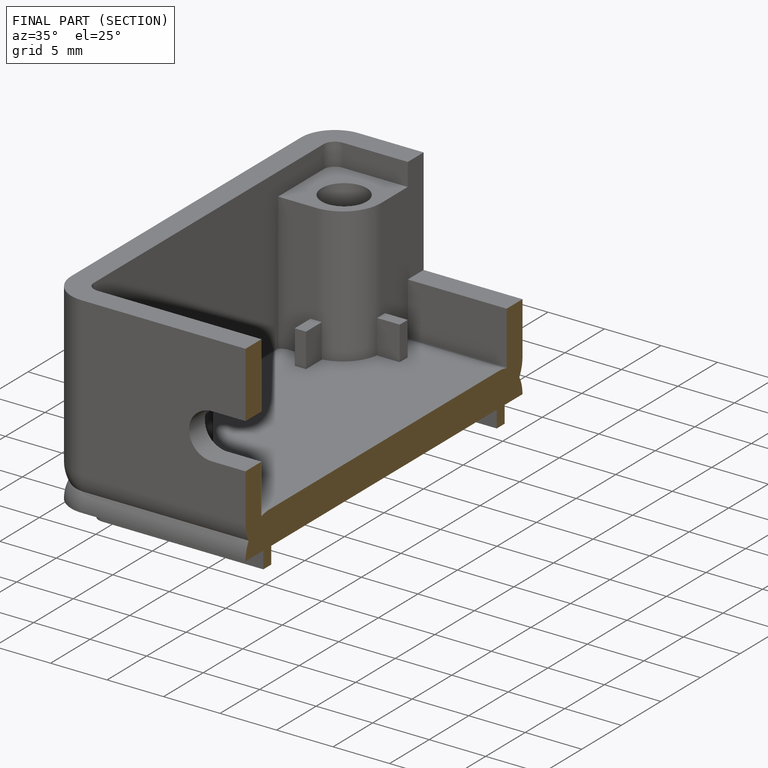
[diagram: finished part — half-section view (interior)]
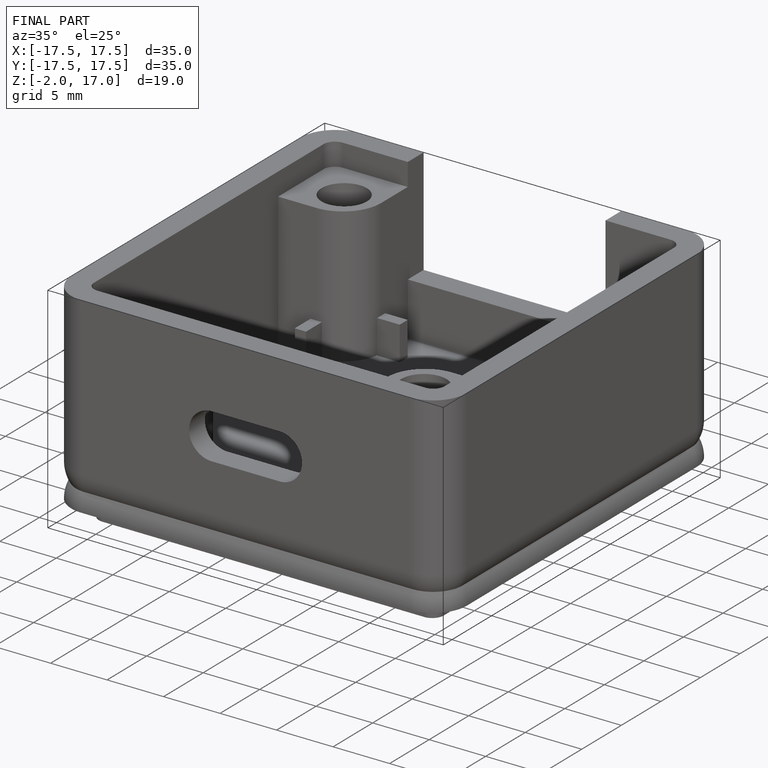
[diagram: finished part — iso view with bounding-box wireframe]
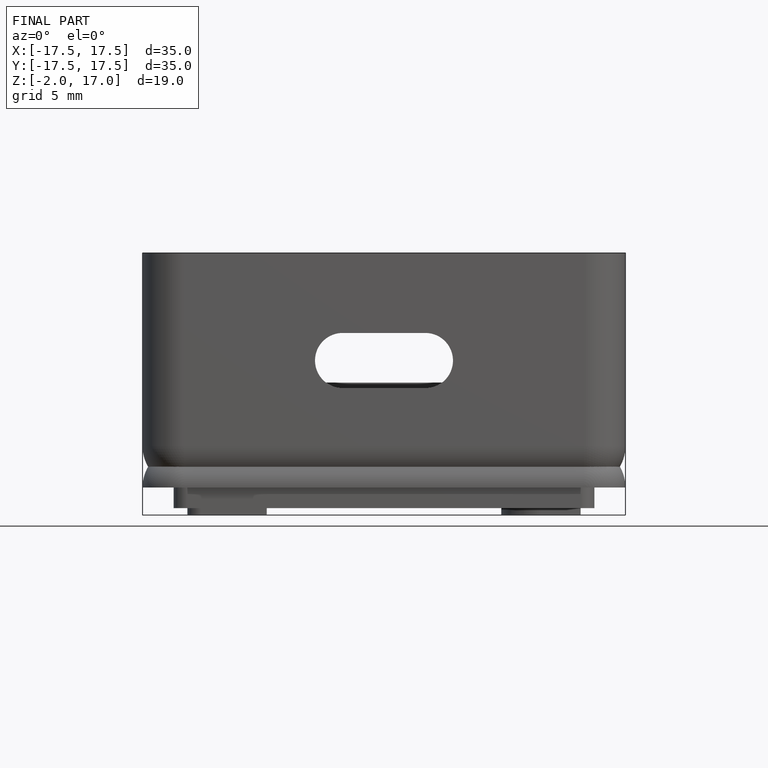
[diagram: finished part — front view with bounding-box wireframe]
